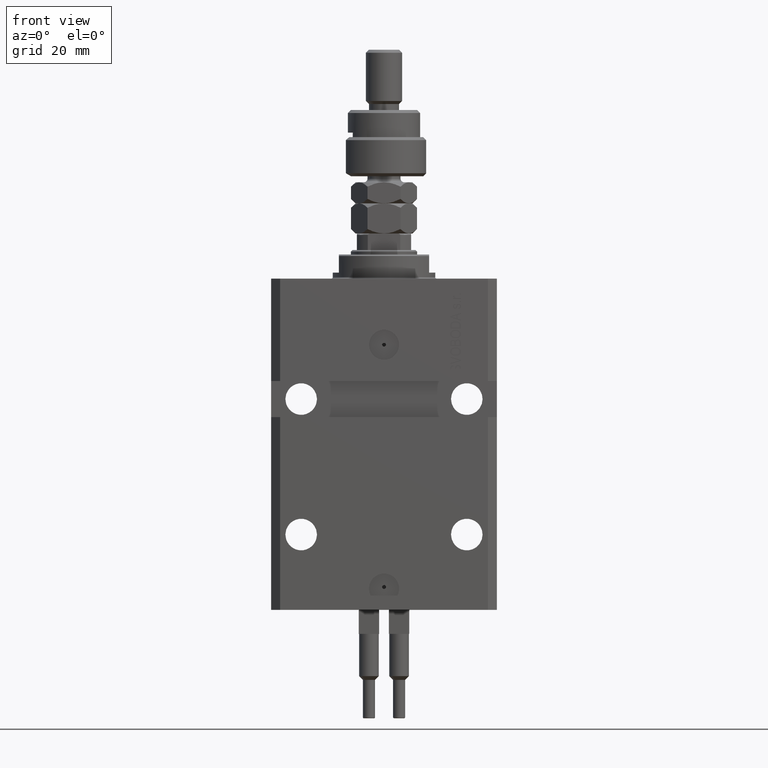
[diagram: clean part render]
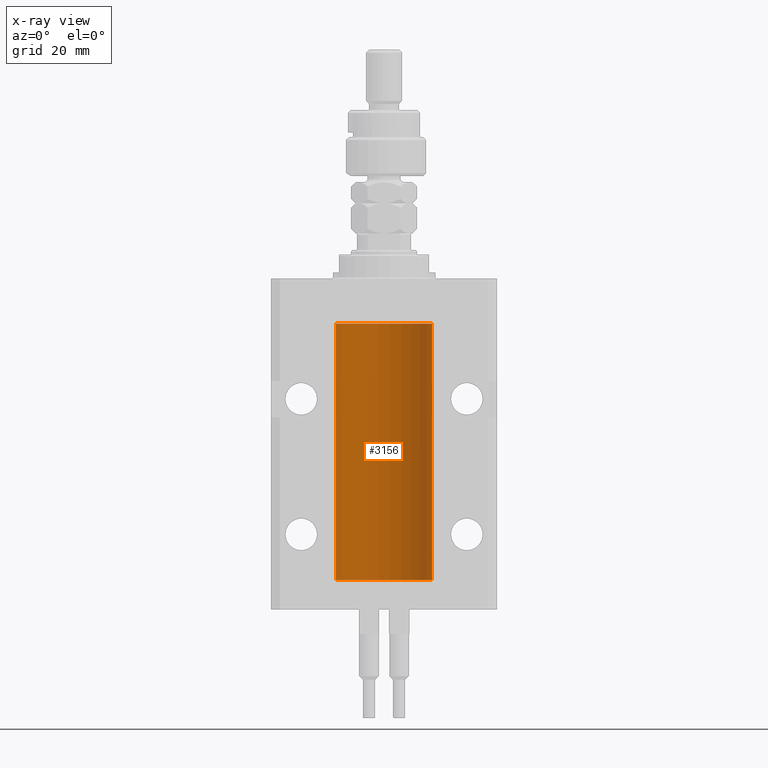
[diagram: x-ray — body ghosted, one internal face saturated and labeled with its STEP entity id]
A machine part, front view, then the same camera in x-ray: the body is ghosted and one INTERNAL B-rep face — a face not visible from any outside direction — is saturated and labeled: STEP entity #3156.
In plain terms, the highlighted cylindrical surface (partial cylindrical patch) has radius 16 mm, axis along (0, 0, 1).
Its self-contained STEP definition (entity closure, byte-faithful):
#370 = CARTESIAN_POINT ( 'NONE',  ( 16.00000000000000000, -7.378931128587136680E-16, -22.62500000000000000 ) ) ;
#976 = CARTESIAN_POINT ( 'NONE',  ( -16.00000000000000000, 1.959434878635765131E-15, -100.0999999999999943 ) ) ;
#1477 = VERTEX_POINT ( 'NONE', #370 ) ;
#1736 = DIRECTION ( 'NONE',  ( -0.000000000000000000, -0.000000000000000000, 1.000000000000000000 ) ) ;
#1861 = CARTESIAN_POINT ( 'NONE',  ( 15.99711856062700477, 0.3252985083514284281, -97.44140297987712529 ) ) ;
#2678 = EDGE_CURVE ( 'NONE', #19395, #6860, #7350, .T. ) ;
#3137 = CARTESIAN_POINT ( 'NONE',  ( -15.99548640841683067, 0.3843705577988847377, -21.50046628527008608 ) ) ;
#3156 = ADVANCED_FACE ( 'NONE', ( #13725 ), #21779, .F. ) ;
#3199 = VERTEX_POINT ( 'NONE', #29083 ) ;
#3539 = ORIENTED_EDGE ( 'NONE', *, *, #14354, .T. ) ;
#3557 = CARTESIAN_POINT ( 'NONE',  ( -15.99070426498503572, 0.5462220647145610286, -98.31460064614144301 ) ) ;
#3559 = ORIENTED_EDGE ( 'NONE', *, *, #32041, .T. ) ;
#3560 = VECTOR ( 'NONE', #7451, 1000.000000000000000 ) ;
#4472 = EDGE_CURVE ( 'NONE', #13111, #43930, #36382, .T. ) ;
#4576 = CARTESIAN_POINT ( 'NONE',  ( 15.99228275317787507, 0.5002975944204003378, -21.61642014570181303 ) ) ;
#4620 = ORIENTED_EDGE ( 'NONE', *, *, #18079, .T. ) ;
#5202 = VECTOR ( 'NONE', #11638, 1000.000000000000000 ) ;
#5454 = AXIS2_PLACEMENT_3D ( 'NONE', #22674, #42469, #50555 ) ;
#5612 = CARTESIAN_POINT ( 'NONE',  ( 16.00000000000000000, 0.000000000000000000, -15.00000000000000000 ) ) ;
#5763 = CARTESIAN_POINT ( 'NONE',  ( 15.98778830858103817, 0.6249999999997223332, -97.91847885046210820 ) ) ;
#6014 = CIRCLE ( 'NONE', #34280, 16.00000000000000000 ) ;
#6523 = CARTESIAN_POINT ( 'NONE',  ( -15.98778717651346071, 0.6250289588122140971, -22.08131585687052478 ) ) ;
#6860 = VERTEX_POINT ( 'NONE', #16887 ) ;
#7202 = CARTESIAN_POINT ( 'NONE',  ( -15.99934216141748244, 0.1636497843296308152, -97.39126528029306940 ) ) ;
#7350 = B_SPLINE_CURVE_WITH_KNOTS ( 'NONE', 3,
 ( #21121, #5763, #40670, #21904, #21380, #1861, #45098, #33618 ),
 .UNSPECIFIED., .F., .F.,
 ( 4, 2, 2, 4 ),
 ( 0.0009773326288700682433, 0.001221554802188685399, 0.001465776975507302772, 0.001954221322144537518 ),
 .UNSPECIFIED. ) ;
#7451 = DIRECTION ( 'NONE',  ( -0.000000000000000000, -0.000000000000000000, 1.000000000000000000 ) ) ;
#8216 = CARTESIAN_POINT ( 'NONE',  ( 15.98778830858104172, 0.6249999999996183053, -21.91847885046212951 ) ) ;
#8453 = VERTEX_POINT ( 'NONE', #14142 ) ;
#8744 = EDGE_CURVE ( 'NONE', #8453, #16550, #6014, .T. ) ;
#8935 = CARTESIAN_POINT ( 'NONE',  ( -15.99711699979841661, 0.3253759916140614439, -98.55856151623174810 ) ) ;
#9340 = EDGE_CURVE ( 'NONE', #16550, #38036, #21798, .T. ) ;
#9402 = EDGE_CURVE ( 'NONE', #16018, #48755, #38947, .T. ) ;
#9408 = ORIENTED_EDGE ( 'NONE', *, *, #8744, .F. ) ;
#9487 = CARTESIAN_POINT ( 'NONE',  ( 15.99548458234361448, 0.3844468804816183471, -98.49947786696355934 ) ) ;
#9646 = CARTESIAN_POINT ( 'NONE',  ( 16.00000000000000000, -1.835653844722709729E-15, -98.62500000000000000 ) ) ;
#10188 = CARTESIAN_POINT ( 'NONE',  ( -16.00000000000000000, 0.1631714642025800244, -22.62499999999985789 ) ) ;
#10396 = VERTEX_POINT ( 'NONE', #5612 ) ;
#10440 = CARTESIAN_POINT ( 'NONE',  ( -15.98844267028591482, 0.6088369347963316081, -22.16324735024328518 ) ) ;
#10690 = CARTESIAN_POINT ( 'NONE',  ( -15.99228023727724413, 0.5003781296993413674, -22.38347829554236057 ) ) ;
#11127 = CARTESIAN_POINT ( 'NONE',  ( 16.00000000000000000, 0.000000000000000000, -100.0999999999999943 ) ) ;
#11144 = EDGE_CURVE ( 'NONE', #43930, #10396, #18670, .T. ) ;
#11533 = VECTOR ( 'NONE', #28063, 1000.000000000000000 ) ;
#11638 = DIRECTION ( 'NONE',  ( -0.000000000000000000, -0.000000000000000000, 1.000000000000000000 ) ) ;
#11672 = LINE ( 'NONE', #976, #11533 ) ;
#11878 = CARTESIAN_POINT ( 'NONE',  ( -16.00000000000000000, -1.303459030566954747E-14, -97.37500000000000000 ) ) ;
#12846 = CARTESIAN_POINT ( 'NONE',  ( -15.99228023727724057, 0.5003781296993360383, -98.38347829554236057 ) ) ;
#13111 = VERTEX_POINT ( 'NONE', #23703 ) ;
#13288 = CARTESIAN_POINT ( 'NONE',  ( 15.99934183755191341, 0.1636877470526788836, -22.60872690654067796 ) ) ;
#13396 = CARTESIAN_POINT ( 'NONE',  ( 16.00000000000001066, 0.08261762387943044628, -98.62500000000001421 ) ) ;
#13602 = ORIENTED_EDGE ( 'NONE', *, *, #11144, .T. ) ;
#13725 = FACE_OUTER_BOUND ( 'NONE', #38148, .T. ) ;
#13966 = CARTESIAN_POINT ( 'NONE',  ( 16.00000000000000000, 0.000000000000000000, -100.0999999999999943 ) ) ;
#14142 = CARTESIAN_POINT ( 'NONE',  ( 16.00000000000000000, 0.000000000000000000, -100.0999999999999943 ) ) ;
#14354 = EDGE_CURVE ( 'NONE', #1477, #13111, #50135, .T. ) ;
#14857 = CARTESIAN_POINT ( 'NONE',  ( -15.98779057735153941, 0.6249419637998100407, -21.83670145863507273 ) ) ;
#15127 = CARTESIAN_POINT ( 'NONE',  ( -16.00000000000013145, 3.685127038166941002E-13, -22.62500000000341771 ) ) ;
#15691 = CARTESIAN_POINT ( 'NONE',  ( 15.98778830858101685, 0.6250000000002223777, -98.16311639173024162 ) ) ;
#16018 = VERTEX_POINT ( 'NONE', #36916 ) ;
#16058 = CARTESIAN_POINT ( 'NONE',  ( -15.98779057735153941, 0.6249419637998017141, -97.83670145863504786 ) ) ;
#16550 = VERTEX_POINT ( 'NONE', #39675 ) ;
#16887 = CARTESIAN_POINT ( 'NONE',  ( 16.00000000000013145, 3.665532692826917502E-13, -97.37499999999657518 ) ) ;
#17694 = CARTESIAN_POINT ( 'NONE',  ( 15.99070366873610638, 0.5574063959866681905, -22.32639436837549596 ) ) ;
#17946 = CARTESIAN_POINT ( 'NONE',  ( 15.99548458234361803, 0.3844468804815583396, -22.49947786696350960 ) ) ;
#17958 = CARTESIAN_POINT ( 'NONE',  ( 15.98778830858070954, 0.6250000000080517815, -97.99999999999916156 ) ) ;
#18079 = EDGE_CURVE ( 'NONE', #10396, #3199, #19553, .T. ) ;
#18647 = CARTESIAN_POINT ( 'NONE',  ( -16.00000000000000000, 1.959434878635765131E-15, -100.0999999999999943 ) ) ;
#18670 = LINE ( 'NONE', #11127, #5202 ) ;
#18913 = EDGE_CURVE ( 'NONE', #16018, #38036, #34289, .T. ) ;
#19307 = VERTEX_POINT ( 'NONE', #9646 ) ;
#19395 = VERTEX_POINT ( 'NONE', #17958 ) ;
#19553 = CIRCLE ( 'NONE', #5454, 16.00000000000000000 ) ;
#20628 = VERTEX_POINT ( 'NONE', #42116 ) ;
#21121 = CARTESIAN_POINT ( 'NONE',  ( 15.98778830858070954, 0.6250000000080517815, -97.99999999999916156 ) ) ;
#21273 = CARTESIAN_POINT ( 'NONE',  ( -16.00000000000013145, 3.685127046438747128E-13, -98.62500000000343903 ) ) ;
#21380 = CARTESIAN_POINT ( 'NONE',  ( 15.99228275317786441, 0.5002975944204781644, -97.61642014570176684 ) ) ;
#21779 = CYLINDRICAL_SURFACE ( 'NONE', #25747, 16.00000000000000000 ) ;
#21798 = LINE ( 'NONE', #41843, #48375 ) ;
#21904 = CARTESIAN_POINT ( 'NONE',  ( 15.99070695999103542, 0.5461439696927204990, -97.68526802364048933 ) ) ;
#22674 = CARTESIAN_POINT ( 'NONE',  ( 0.000000000000000000, 0.000000000000000000, -15.00000000000000000 ) ) ;
#23317 = CARTESIAN_POINT ( 'NONE',  ( 15.98844460043492077, 0.6087869699336542206, -21.83657454967558564 ) ) ;
#23342 = B_SPLINE_CURVE_WITH_KNOTS ( 'NONE', 3,
 ( #34888, #50801, #42452, #50032, #3137, #38277, #14857, #6523, #10440, #49774, #10690, #50284, #10188, #15127 ),
 .UNSPECIFIED., .F., .F.,
 ( 4, 2, 2, 2, 2, 2, 4 ),
 ( 1.597328219370744179E-19, 0.0002442776652680942405, 0.0004885553305361882643, 0.0009771106610723839011, 0.001221388326340481665, 0.001465665991608579430, 0.001954221322144767369 ),
 .UNSPECIFIED. ) ;
#23703 = CARTESIAN_POINT ( 'NONE',  ( 15.98778830858070954, 0.6250000000079481977, -21.99999999999914735 ) ) ;
#24099 = CARTESIAN_POINT ( 'NONE',  ( 15.99711856062700122, 0.3252985083513916242, -21.44140297987714661 ) ) ;
#24342 = VECTOR ( 'NONE', #1736, 1000.000000000000000 ) ;
#24675 = CARTESIAN_POINT ( 'NONE',  ( 0.000000000000000000, 0.000000000000000000, -100.0999999999999943 ) ) ;
#24788 = LINE ( 'NONE', #36750, #25460 ) ;
#24816 = CARTESIAN_POINT ( 'NONE',  ( -15.99999999999998934, 0.1631714642025804407, -98.62499999999987210 ) ) ;
#25256 = CARTESIAN_POINT ( 'NONE',  ( 16.00000000000000000, -7.378931128587136680E-16, -22.62500000000000000 ) ) ;
#25460 = VECTOR ( 'NONE', #41168, 1000.000000000000000 ) ;
#25710 = ORIENTED_EDGE ( 'NONE', *, *, #18913, .T. ) ;
#25747 = AXIS2_PLACEMENT_3D ( 'NONE', #24675, #28829, #37143 ) ;
#26055 = DIRECTION ( 'NONE',  ( 0.000000000000000000, 0.000000000000000000, 1.000000000000000000 ) ) ;
#26434 = LINE ( 'NONE', #13966, #24342 ) ;
#27191 = EDGE_CURVE ( 'NONE', #8453, #19307, #24788, .T. ) ;
#27399 = CARTESIAN_POINT ( 'NONE',  ( 15.98778830858070954, 0.6250000000080517815, -97.99999999999916156 ) ) ;
#27763 = CARTESIAN_POINT ( 'NONE',  ( -15.99548640841682712, 0.3843705577988784650, -97.50046628527007897 ) ) ;
#28063 = DIRECTION ( 'NONE',  ( -0.000000000000000000, -0.000000000000000000, 1.000000000000000000 ) ) ;
#28400 = ORIENTED_EDGE ( 'NONE', *, *, #44839, .T. ) ;
#28829 = DIRECTION ( 'NONE',  ( -0.000000000000000000, -0.000000000000000000, 1.000000000000000000 ) ) ;
#29083 = CARTESIAN_POINT ( 'NONE',  ( -16.00000000000000000, 1.959434878635765131E-15, -15.00000000000000000 ) ) ;
#29267 = CARTESIAN_POINT ( 'NONE',  ( 15.99707608081895138, 0.3151028052310259620, -98.54594170697734512 ) ) ;
#29950 = ORIENTED_EDGE ( 'NONE', *, *, #44562, .T. ) ;
#31561 = CARTESIAN_POINT ( 'NONE',  ( 15.99070366873610283, 0.5574063959867601170, -98.32639436837558833 ) ) ;
#32041 = EDGE_CURVE ( 'NONE', #19307, #19395, #33406, .T. ) ;
#32170 = CARTESIAN_POINT ( 'NONE',  ( 15.98778830858070954, 0.6250000000079481977, -21.99999999999914735 ) ) ;
#32506 = EDGE_CURVE ( 'NONE', #20628, #3199, #11672, .T. ) ;
#33406 = B_SPLINE_CURVE_WITH_KNOTS ( 'NONE', 3,
 ( #45923, #13396, #49073, #29267, #9487, #31561, #15691, #27399 ),
 .UNSPECIFIED., .F., .F.,
 ( 4, 2, 2, 4 ),
 ( 1.783888443149829469E-18, 0.0002443331572175257886, 0.0004886663144350497342, 0.0009773326288700682433 ),
 .UNSPECIFIED. ) ;
#33618 = CARTESIAN_POINT ( 'NONE',  ( 16.00000000000013145, 3.665532692826917502E-13, -97.37499999999657518 ) ) ;
#34077 = CARTESIAN_POINT ( 'NONE',  ( 15.99707608081895494, 0.3151028052309814975, -22.54594170697728117 ) ) ;
#34280 = AXIS2_PLACEMENT_3D ( 'NONE', #49511, #26055, #40910 ) ;
#34289 = B_SPLINE_CURVE_WITH_KNOTS ( 'NONE', 3,
 ( #11878, #47830, #7202, #44614, #27763, #47049, #16058, #38950, #51218, #3557, #12846, #8935, #24816, #47307 ),
 .UNSPECIFIED., .F., .F.,
 ( 4, 2, 2, 2, 2, 2, 4 ),
 ( 1.003919637555167698E-18, 0.0002442776652680894158, 0.0004885553305361776391, 0.0009771106610723541940, 0.001221388326340463017, 0.001465665991608572274, 0.001954221322144760863 ),
 .UNSPECIFIED. ) ;
#34888 = CARTESIAN_POINT ( 'NONE',  ( -16.00000000000000000, 1.643679961284177128E-16, -21.37499999999999645 ) ) ;
#35077 = ORIENTED_EDGE ( 'NONE', *, *, #32506, .F. ) ;
#36382 = B_SPLINE_CURVE_WITH_KNOTS ( 'NONE', 3,
 ( #32170, #8216, #23317, #39718, #4576, #24099, #48074, #44159 ),
 .UNSPECIFIED., .F., .F.,
 ( 4, 2, 2, 4 ),
 ( 0.0009773326288699671956, 0.001221554802188560499, 0.001465776975507153803, 0.001954221322144333254 ),
 .UNSPECIFIED. ) ;
#36599 = ORIENTED_EDGE ( 'NONE', *, *, #27191, .T. ) ;
#36750 = CARTESIAN_POINT ( 'NONE',  ( 16.00000000000000000, 0.000000000000000000, -100.0999999999999943 ) ) ;
#36916 = CARTESIAN_POINT ( 'NONE',  ( -16.00000000000000000, -1.303459030566954747E-14, -97.37500000000000000 ) ) ;
#37143 = DIRECTION ( 'NONE',  ( 1.000000000000000000, 0.000000000000000000, 0.000000000000000000 ) ) ;
#37162 = DIRECTION ( 'NONE',  ( -0.000000000000000000, -0.000000000000000000, 1.000000000000000000 ) ) ;
#37978 = CARTESIAN_POINT ( 'NONE',  ( 15.98778830858101152, 0.6250000000001202372, -22.16311639173018477 ) ) ;
#38036 = VERTEX_POINT ( 'NONE', #21273 ) ;
#38148 = EDGE_LOOP ( 'NONE', ( #38597, #9408, #36599, #3559, #38828, #28400, #3539, #42586, #13602, #4620, #35077, #29950, #46818, #25710 ) ) ;
#38277 = CARTESIAN_POINT ( 'NONE',  ( -15.99070653155267685, 0.5573233280232986475, -21.67348148680506625 ) ) ;
#38597 = ORIENTED_EDGE ( 'NONE', *, *, #9340, .F. ) ;
#38828 = ORIENTED_EDGE ( 'NONE', *, *, #2678, .T. ) ;
#38947 = LINE ( 'NONE', #18647, #3560 ) ;
#38950 = CARTESIAN_POINT ( 'NONE',  ( -15.98778717651346604, 0.6250289588122097673, -98.08131585687051768 ) ) ;
#39675 = CARTESIAN_POINT ( 'NONE',  ( -16.00000000000000000, 1.959434878635765131E-15, -100.0999999999999943 ) ) ;
#39718 = CARTESIAN_POINT ( 'NONE',  ( 15.99070695999104252, 0.5461439696926362330, -21.68526802364053552 ) ) ;
#40670 = CARTESIAN_POINT ( 'NONE',  ( 15.98844460043491367, 0.6087869699337551399, -97.83657454967556077 ) ) ;
#40910 = DIRECTION ( 'NONE',  ( 1.000000000000000000, 0.000000000000000000, 0.000000000000000000 ) ) ;
#41168 = DIRECTION ( 'NONE',  ( -0.000000000000000000, -0.000000000000000000, 1.000000000000000000 ) ) ;
#41301 = CARTESIAN_POINT ( 'NONE',  ( 16.00000000000013145, 3.665532680419208314E-13, -21.37499999999658229 ) ) ;
#41642 = CARTESIAN_POINT ( 'NONE',  ( 15.98778830858070954, 0.6250000000079481977, -21.99999999999914735 ) ) ;
#41843 = CARTESIAN_POINT ( 'NONE',  ( -16.00000000000000000, 1.959434878635765131E-15, -100.0999999999999943 ) ) ;
#42116 = CARTESIAN_POINT ( 'NONE',  ( -16.00000000000000000, 1.643679961284177128E-16, -21.37499999999999645 ) ) ;
#42452 = CARTESIAN_POINT ( 'NONE',  ( -15.99934216141748244, 0.1636497843296417787, -21.39126528029306229 ) ) ;
#42469 = DIRECTION ( 'NONE',  ( 0.000000000000000000, 0.000000000000000000, 1.000000000000000000 ) ) ;
#42586 = ORIENTED_EDGE ( 'NONE', *, *, #4472, .T. ) ;
#43930 = VERTEX_POINT ( 'NONE', #41301 ) ;
#44159 = CARTESIAN_POINT ( 'NONE',  ( 16.00000000000013145, 3.665532680419208314E-13, -21.37499999999658229 ) ) ;
#44562 = EDGE_CURVE ( 'NONE', #20628, #48755, #23342, .T. ) ;
#44614 = CARTESIAN_POINT ( 'NONE',  ( -15.99707730059171240, 0.3150375992092294686, -97.45402333202572720 ) ) ;
#44839 = EDGE_CURVE ( 'NONE', #6860, #1477, #26434, .T. ) ;
#45098 = CARTESIAN_POINT ( 'NONE',  ( 15.99999999999999645, 0.1631343969470158417, -97.37500000000021316 ) ) ;
#45671 = CARTESIAN_POINT ( 'NONE',  ( -16.00000000000013145, 3.685127038166941002E-13, -22.62500000000341771 ) ) ;
#45923 = CARTESIAN_POINT ( 'NONE',  ( 16.00000000000000000, -1.835653844722709729E-15, -98.62500000000000000 ) ) ;
#46818 = ORIENTED_EDGE ( 'NONE', *, *, #9402, .F. ) ;
#47049 = CARTESIAN_POINT ( 'NONE',  ( -15.99070653155267685, 0.5573233280232928744, -97.67348148680505915 ) ) ;
#47307 = CARTESIAN_POINT ( 'NONE',  ( -16.00000000000013145, 3.685127046438747128E-13, -98.62500000000343903 ) ) ;
#47830 = CARTESIAN_POINT ( 'NONE',  ( -16.00000000000000711, 0.08259886010188650929, -97.37500000000000000 ) ) ;
#48074 = CARTESIAN_POINT ( 'NONE',  ( 15.99999999999999289, 0.1631343969470014366, -21.37500000000020606 ) ) ;
#48375 = VECTOR ( 'NONE', #37162, 1000.000000000000000 ) ;
#48755 = VERTEX_POINT ( 'NONE', #45671 ) ;
#49073 = CARTESIAN_POINT ( 'NONE',  ( 15.99934183755190986, 0.1636877470527013101, -98.60872690654072414 ) ) ;
#49229 = CARTESIAN_POINT ( 'NONE',  ( 16.00000000000000000, 0.08261762387942135633, -22.62499999999996803 ) ) ;
#49511 = CARTESIAN_POINT ( 'NONE',  ( 0.000000000000000000, 0.000000000000000000, -100.0999999999999943 ) ) ;
#49774 = CARTESIAN_POINT ( 'NONE',  ( -15.99070426498503217, 0.5462220647145618058, -22.31460064614143590 ) ) ;
#50032 = CARTESIAN_POINT ( 'NONE',  ( -15.99707730059171240, 0.3150375992092407373, -21.45402333202571654 ) ) ;
#50135 = B_SPLINE_CURVE_WITH_KNOTS ( 'NONE', 3,
 ( #25256, #49229, #13288, #34077, #17946, #17694, #37978, #41642 ),
 .UNSPECIFIED., .F., .F.,
 ( 4, 2, 2, 4 ),
 ( 1.864948331951035013E-18, 0.0002443331572174913110, 0.0004886663144349807789, 0.0009773326288699671956 ),
 .UNSPECIFIED. ) ;
#50284 = CARTESIAN_POINT ( 'NONE',  ( -15.99711699979842017, 0.3253759916140657737, -22.55856151623175521 ) ) ;
#50555 = DIRECTION ( 'NONE',  ( 1.000000000000000000, 0.000000000000000000, 0.000000000000000000 ) ) ;
#50801 = CARTESIAN_POINT ( 'NONE',  ( -16.00000000000000711, 0.08259886010189904093, -21.37500000000000000 ) ) ;
#51218 = CARTESIAN_POINT ( 'NONE',  ( -15.98844267028590949, 0.6088369347963275002, -98.16324735024325321 ) ) ;